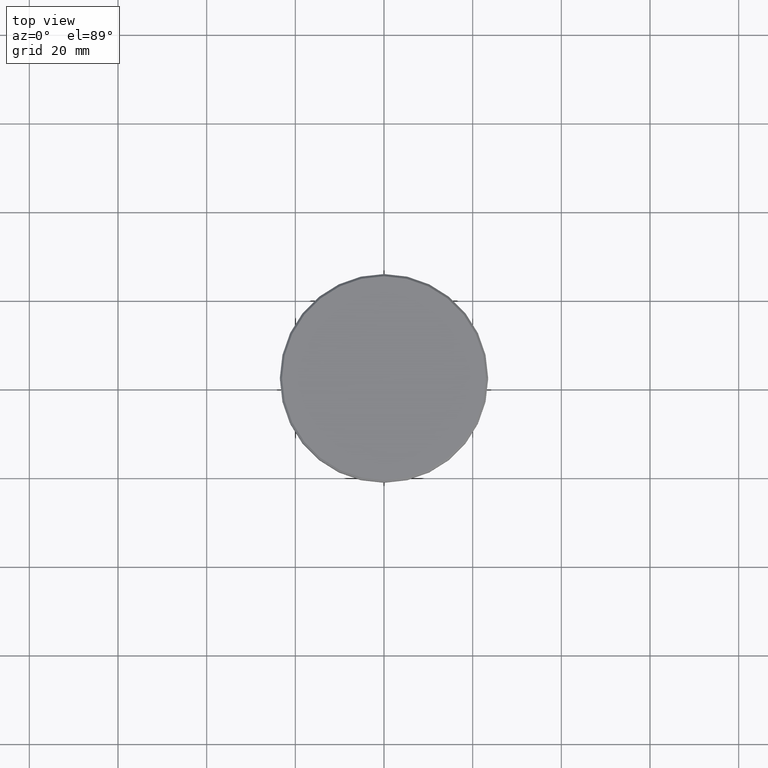
[diagram: clean part render]
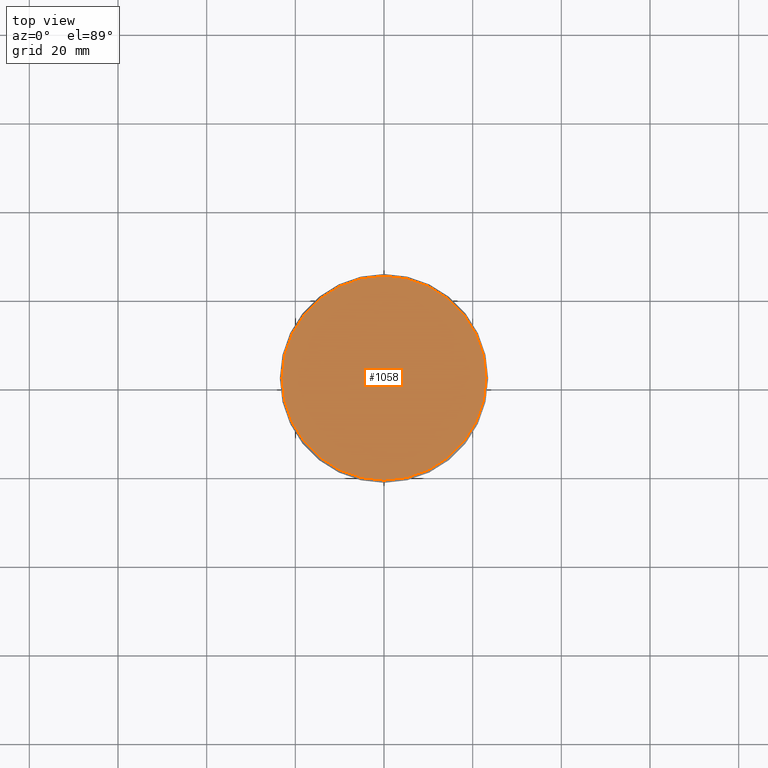
[diagram: same view with one face highlighted and labeled with its STEP entity id]
A machine part, top view. The second image highlights one B-rep face of the part: STEP entity #1058.
In plain terms, the highlighted planar face has unit normal (0, -0, 1).
Its self-contained STEP definition (entity closure, byte-faithful):
#58 = CIRCLE ( 'NONE', #136, 23.00000000000001066 ) ;
#136 = AXIS2_PLACEMENT_3D ( 'NONE', #905, #1175, #269 ) ;
#210 = EDGE_CURVE ( 'NONE', #1049, #332, #814, .T. ) ;
#269 = DIRECTION ( 'NONE',  ( 1.000000000000000000, 0.000000000000000000, 0.000000000000000000 ) ) ;
#318 = CARTESIAN_POINT ( 'NONE',  ( 23.00000000000001066, 2.847303808017596928E-15, 0.000000000000000000 ) ) ;
#326 = AXIS2_PLACEMENT_3D ( 'NONE', #789, #626, #879 ) ;
#329 = FACE_OUTER_BOUND ( 'NONE', #614, .T. ) ;
#330 = CARTESIAN_POINT ( 'NONE',  ( -23.00000000000001066, 0.000000000000000000, 0.000000000000000000 ) ) ;
#332 = VERTEX_POINT ( 'NONE', #330 ) ;
#558 = CARTESIAN_POINT ( 'NONE',  ( 0.000000000000000000, 0.000000000000000000, 0.000000000000000000 ) ) ;
#614 = EDGE_LOOP ( 'NONE', ( #839, #1100 ) ) ;
#626 = DIRECTION ( 'NONE',  ( 0.000000000000000000, -0.000000000000000000, 1.000000000000000000 ) ) ;
#789 = CARTESIAN_POINT ( 'NONE',  ( 0.000000000000000000, 0.000000000000000000, 0.000000000000000000 ) ) ;
#814 = CIRCLE ( 'NONE', #988, 23.00000000000001066 ) ;
#839 = ORIENTED_EDGE ( 'NONE', *, *, #893, .T. ) ;
#879 = DIRECTION ( 'NONE',  ( 1.000000000000000000, 0.000000000000000000, 0.000000000000000000 ) ) ;
#893 = EDGE_CURVE ( 'NONE', #332, #1049, #58, .T. ) ;
#905 = CARTESIAN_POINT ( 'NONE',  ( 0.000000000000000000, 0.000000000000000000, 0.000000000000000000 ) ) ;
#929 = DIRECTION ( 'NONE',  ( 1.000000000000000000, 0.000000000000000000, 0.000000000000000000 ) ) ;
#977 = PLANE ( 'NONE',  #326 ) ;
#988 = AXIS2_PLACEMENT_3D ( 'NONE', #558, #1015, #929 ) ;
#1015 = DIRECTION ( 'NONE',  ( -0.000000000000000000, -0.000000000000000000, 1.000000000000000000 ) ) ;
#1049 = VERTEX_POINT ( 'NONE', #318 ) ;
#1058 = ADVANCED_FACE ( 'NONE', ( #329 ), #977, .T. ) ;
#1100 = ORIENTED_EDGE ( 'NONE', *, *, #210, .T. ) ;
#1175 = DIRECTION ( 'NONE',  ( -0.000000000000000000, -0.000000000000000000, 1.000000000000000000 ) ) ;